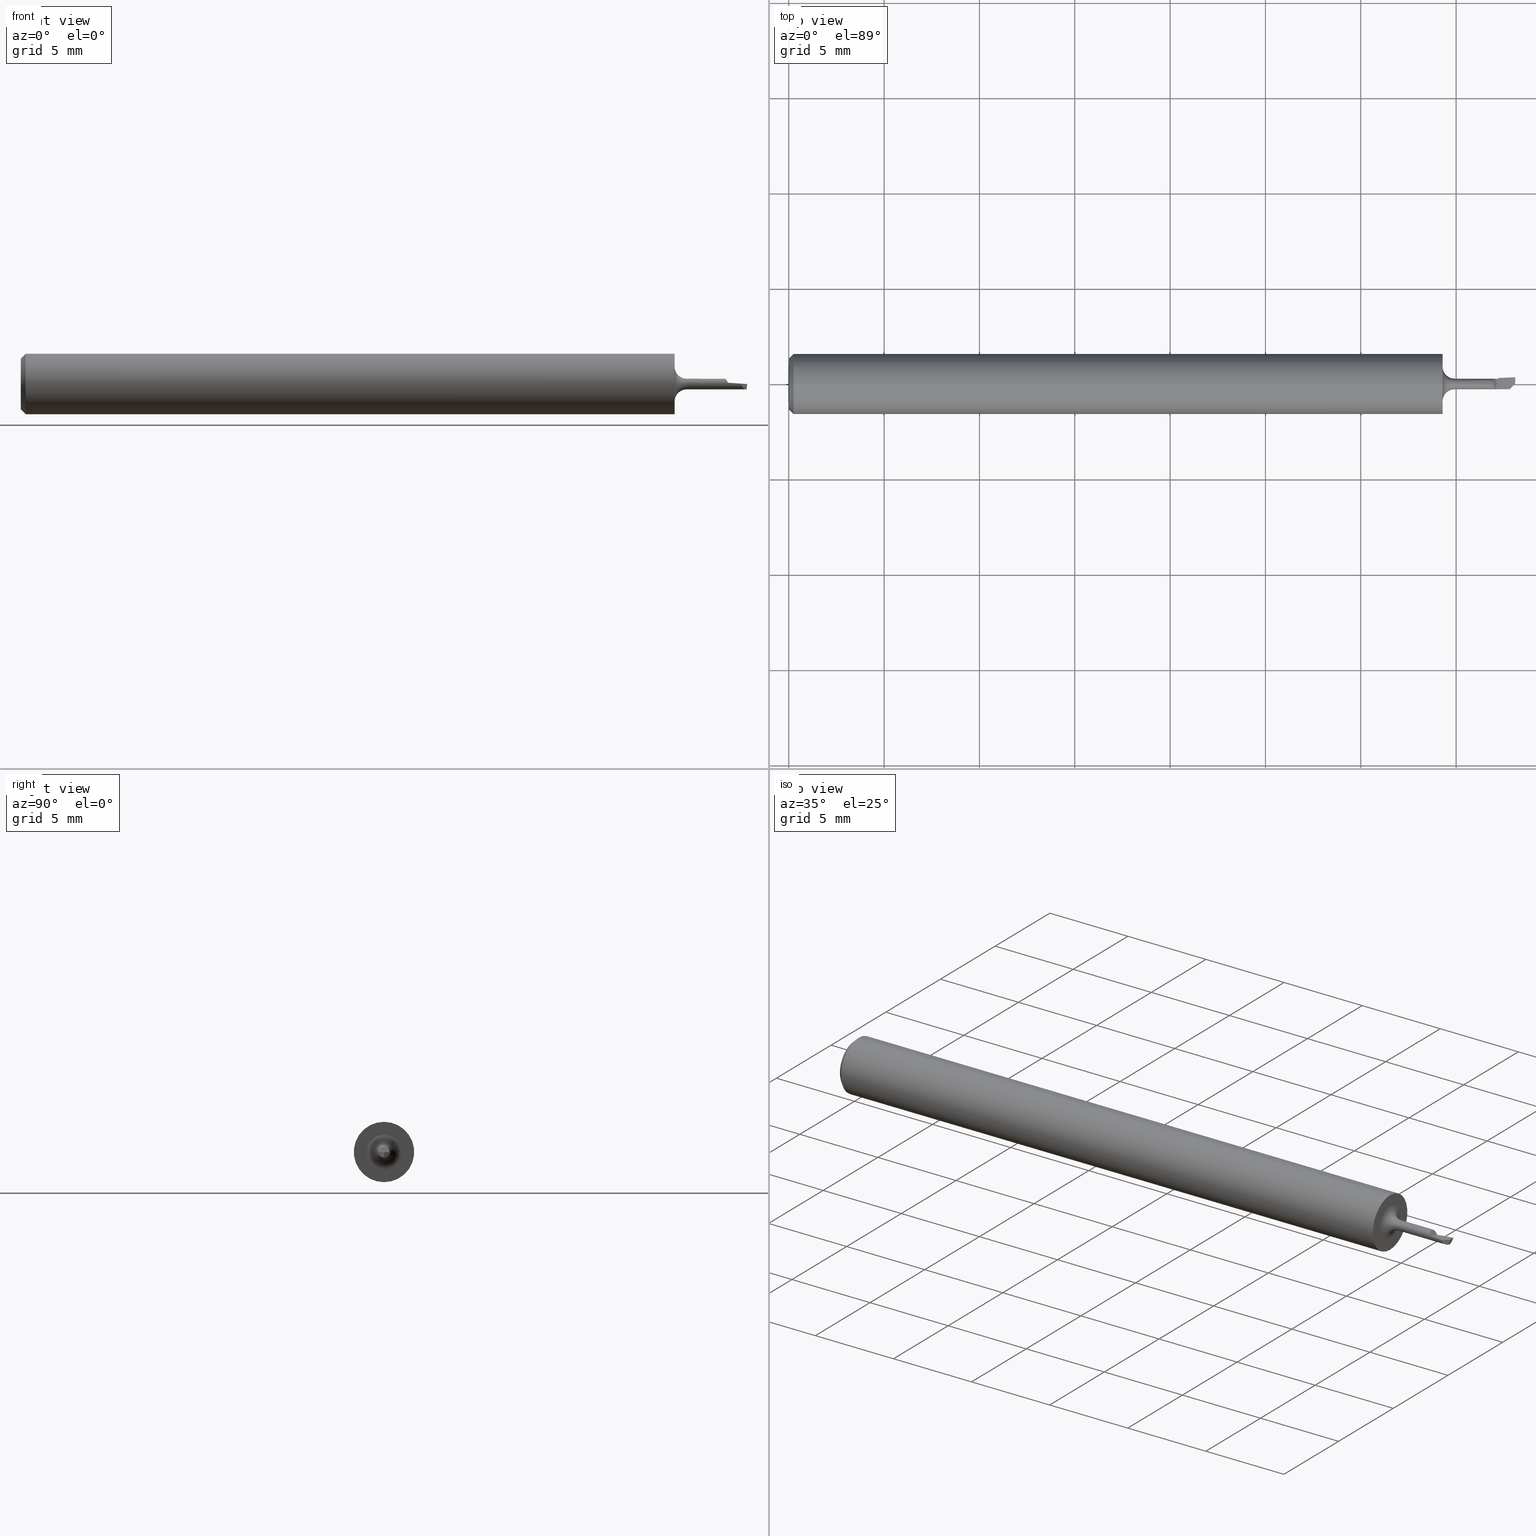
[diagram: canonical four-view strip — front | top / right | iso, engineering-drawing reading convention]
A machine part, canonical four-view strip (front | top / right | iso — engineering-drawing reading convention). The complete STEP part file that produces these views, byte-faithful:
ISO-10303-21;
HEADER;
FILE_DESCRIPTION (( 'STEP AP203' ),
    '1' );
FILE_NAME ('215922-HB27.STEP',
    '2024-08-05T22:22:32',
    ( '' ),
    ( '' ),
    'SwSTEP 2.0',
    'SolidWorks 2024',
    '' );
FILE_SCHEMA (( 'CONFIG_CONTROL_DESIGN' ));
ENDSEC;

DATA;
#1 = DIRECTION ( 'NONE',  ( -1.000000000000000000, -0.000000000000000000, -0.000000000000000000 ) ) ;
#2 = EDGE_CURVE ( 'NONE', #233, #117, #296, .T. ) ;
#3 = DIRECTION ( 'NONE',  ( 0.000000000000000000, -0.6768759696826566197, -0.7360970871197380916 ) ) ;
#4 =( BOUNDED_CURVE ( )  B_SPLINE_CURVE ( 2, ( #333, #350, #499 ),
 .UNSPECIFIED., .F., .T. ) 
 B_SPLINE_CURVE_WITH_KNOTS ( ( 3, 3 ),
 ( 0.06188463428647925091, 0.1997340516793694731 ),
 .UNSPECIFIED. ) 
 CURVE ( )  GEOMETRIC_REPRESENTATION_ITEM ( )  RATIONAL_B_SPLINE_CURVE ( ( 0.9768520538734604131, 0.9668272027460060869, 0.9641484813838072654 ) ) 
 REPRESENTATION_ITEM ( '' )  );
#5 = ORIENTED_EDGE ( 'NONE', *, *, #142, .F. ) ;
#6 = CARTESIAN_POINT ( 'NONE',  ( 1.461805761899245049, 0.01218224114355641839, -0.003035340601619568052 ) ) ;
#7 = CIRCLE ( 'NONE', #177, 0.01099999999999999936 ) ;
#8 = VECTOR ( 'NONE', #405, 39.37007874015748143 ) ;
#9 = VERTEX_POINT ( 'NONE', #354 ) ;
#10 = PLANE ( 'NONE',  #679 ) ;
#11 = ADVANCED_FACE ( 'NONE', ( #307 ), #355, .T. ) ;
#12 = CARTESIAN_POINT ( 'NONE',  ( 0.01000000000000000021, 7.635672792683748212E-18, -0.06235000000000000264 ) ) ;
#13 = VERTEX_POINT ( 'NONE', #348 ) ;
#14 = LINE ( 'NONE', #497, #8 ) ;
#15 = B_SPLINE_CURVE_WITH_KNOTS ( 'NONE', 3,
 ( #393, #701, #55, #381, #540, #164, #589, #330, #588, #432 ),
 .UNSPECIFIED., .F., .F.,
 ( 4, 3, 3, 4 ),
 ( 1.092639670730422270E-18, 3.726437477282539099E-05, 9.316145714878812845E-05, 0.0001490590473651542491 ),
 .UNSPECIFIED. ) ;
#16 = CARTESIAN_POINT ( 'NONE',  ( 0.01000000000000000021, 0.000000000000000000, 0.000000000000000000 ) ) ;
#17 = VERTEX_POINT ( 'NONE', #688 ) ;
#18 = CARTESIAN_POINT ( 'NONE',  ( 1.488026760838569995, -0.01097298327602348224, 0.0007704790908231645480 ) ) ;
#19 = MANIFOLD_SOLID_BREP ( 'Front Angle', #485 ) ;
#20 = CONICAL_SURFACE ( 'NONE', #180, 0.06235000000000000264, 0.7853981633974502774 ) ;
#21 = DATE_AND_TIME ( #123, #245 ) ;
#22 = ORIENTED_EDGE ( 'NONE', *, *, #564, .F. ) ;
#23 = DIRECTION ( 'NONE',  ( -1.000000000000000000, 0.000000000000000000, -0.000000000000000000 ) ) ;
#24 = EDGE_CURVE ( 'NONE', #466, #503, #439, .T. ) ;
#25 = LENGTH_MEASURE_WITH_UNIT ( LENGTH_MEASURE( 0.02539999999999999897 ), #394 );
#26 = EDGE_LOOP ( 'NONE', ( #22, #548, #594, #174 ) ) ;
#27 = CARTESIAN_POINT ( 'NONE',  ( 1.350000000000000311, 0.000000000000000000, 0.06234999999999997489 ) ) ;
#28 = DIRECTION ( 'NONE',  ( 0.000000000000000000, 0.000000000000000000, 1.000000000000000000 ) ) ;
#29 = ORIENTED_EDGE ( 'NONE', *, *, #280, .F. ) ;
#30 = CARTESIAN_POINT ( 'NONE',  ( 1.488026760838569995, -0.01097298327602348224, 0.0007704790908231645480 ) ) ;
#31 = CARTESIAN_POINT ( 'NONE',  ( 1.350000000000000311, 0.000000000000000000, 0.000000000000000000 ) ) ;
#32 = DIRECTION ( 'NONE',  ( 0.7071067811865461294, 8.659560562354950115E-17, 0.7071067811865489050 ) ) ;
#33 = EDGE_CURVE ( 'NONE', #446, #577, #234, .T. ) ;
#34 = AXIS2_PLACEMENT_3D ( 'NONE', #634, #362, #244 ) ;
#35 = EDGE_LOOP ( 'NONE', ( #201, #309, #29, #86, #542, #410 ) ) ;
#36 = DIRECTION ( 'NONE',  ( -0.008726535498371339530, -0.9999619230641711987, -3.658574234678484783E-16 ) ) ;
#37 =( GEOMETRIC_REPRESENTATION_CONTEXT ( 3 ) GLOBAL_UNCERTAINTY_ASSIGNED_CONTEXT ( ( #616 ) ) GLOBAL_UNIT_ASSIGNED_CONTEXT ( ( #82, #653, #229 ) ) REPRESENTATION_CONTEXT ( 'NONE', 'WORKASPACE' ) );
#38 = CC_DESIGN_APPROVAL ( #260, ( #51 ) ) ;
#39 = DIRECTION ( 'NONE',  ( -1.000000000000000000, -0.000000000000000000, -0.000000000000000000 ) ) ;
#40 = CARTESIAN_POINT ( 'NONE',  ( 1.500000000000000222, 0.01400000000000000203, 0.000000000000000000 ) ) ;
#41 = ORIENTED_EDGE ( 'NONE', *, *, #467, .F. ) ;
#42 = EDGE_CURVE ( 'NONE', #637, #90, #249, .T. ) ;
#43 = VERTEX_POINT ( 'NONE', #311 ) ;
#44 = CARTESIAN_POINT ( 'NONE',  ( 0.000000000000000000, 7.635672792683743590E-18, -0.06234999999999997489 ) ) ;
#45 = CARTESIAN_POINT ( 'NONE',  ( 1.461706432049909798, 0.01066192504299740516, -0.002706169687492898136 ) ) ;
#46 = ORIENTED_EDGE ( 'NONE', *, *, #310, .F. ) ;
#47 = FACE_OUTER_BOUND ( 'NONE', #35, .T. ) ;
#48 = CARTESIAN_POINT ( 'NONE',  ( 0.000000000000000000, 0.000000000000000000, 0.000000000000000000 ) ) ;
#49 = DIRECTION ( 'NONE',  ( 0.000000000000000000, -0.8443279255020124108, -0.5358267949790007645 ) ) ;
#50 = VERTEX_POINT ( 'NONE', #27 ) ;
#51 = SECURITY_CLASSIFICATION ( '', '', #627 ) ;
#52 = CARTESIAN_POINT ( 'NONE',  ( 1.465000000000000302, 0.01099999999999999936, 0.000000000000000000 ) ) ;
#53 = CARTESIAN_POINT ( 'NONE',  ( 1.465000000000000080, 0.008663557173212241974, -0.007059922231586013980 ) ) ;
#54 = CARTESIAN_POINT ( 'NONE',  ( 0.01000000000000000021, 0.000000000000000000, 0.000000000000000000 ) ) ;
#55 = CARTESIAN_POINT ( 'NONE',  ( 1.499462306254320865, 0.01156320831104424088, -0.004205809907828395380 ) ) ;
#56 = CARTESIAN_POINT ( 'NONE',  ( 1.461706432049909798, 0.01066192504299740516, -0.002706169687492898136 ) ) ;
#57 = CARTESIAN_POINT ( 'NONE',  ( 1.493101500071699395, -0.005898244042894709022, -0.05476742737129525196 ) ) ;
#58 = AXIS2_PLACEMENT_3D ( 'NONE', #149, #203, #568 ) ;
#59 = ORGANIZATION ( 'UNSPECIFIED', 'UNSPECIFIED', '' ) ;
#60 = CARTESIAN_POINT ( 'NONE',  ( 1.455000000000000293, -0.008936863904572768871, 0.01293529125681014934 ) ) ;
#61 = ADVANCED_FACE ( 'NONE', ( #47 ), #257, .F. ) ;
#62 = CARTESIAN_POINT ( 'NONE',  ( 1.454999999999999627, 0.006576484322378089130, 0.008802041410050412060 ) ) ;
#63 = CARTESIAN_POINT ( 'NONE',  ( 1.476666675937827078, 0.009544854644398165222, -0.006506163763672952703 ) ) ;
#64 = ORIENTED_EDGE ( 'NONE', *, *, #264, .T. ) ;
#65 =( BOUNDED_CURVE ( )  B_SPLINE_CURVE ( 3, ( #595, #403, #134, #237 ),
 .UNSPECIFIED., .F., .T. ) 
 B_SPLINE_CURVE_WITH_KNOTS ( ( 4, 4 ),
 ( 0.0006483436508097866055, 0.0006954303812397327365 ),
 .UNSPECIFIED. ) 
 CURVE ( )  GEOMETRIC_REPRESENTATION_ITEM ( )  RATIONAL_B_SPLINE_CURVE ( ( 0.9652500736883317112, 0.9652632011816517643, 0.9652774352154624982, 0.9652927757897641348 ) ) 
 REPRESENTATION_ITEM ( '' )  );
#66 = CARTESIAN_POINT ( 'NONE',  ( 1.500000000000000222, 0.01400000000000000203, 0.000000000000000000 ) ) ;
#67 = PERSON_AND_ORGANIZATION ( #358, #59 ) ;
#68 = EDGE_LOOP ( 'NONE', ( #566, #468, #544, #41, #449, #395, #226, #291, #521 ) ) ;
#69 = DIRECTION ( 'NONE',  ( -0.000000000000000000, 1.000000000000000000, 1.224646799147353207E-16 ) ) ;
#70 = AXIS2_PLACEMENT_3D ( 'NONE', #401, #343, #437 ) ;
#71 = APPLICATION_CONTEXT ( 'configuration controlled 3d designs of mechanical parts and assemblies' ) ;
#72 = APPLICATION_PROTOCOL_DEFINITION ( 'international standard', 'config_control_design', 1994, #71 ) ;
#73 = ORIENTED_EDGE ( 'NONE', *, *, #669, .F. ) ;
#74 = DIRECTION ( 'NONE',  ( 1.000000000000000000, 0.000000000000000000, 0.000000000000000000 ) ) ;
#75 = PERSON_AND_ORGANIZATION ( #358, #59 ) ;
#76 = VERTEX_POINT ( 'NONE', #558 ) ;
#77 = CARTESIAN_POINT ( 'NONE',  ( 1.498570902974785124, 0.005014482246474024144, -0.01100000000000006008 ) ) ;
#78 = DIRECTION ( 'NONE',  ( 0.000000000000000000, 0.000000000000000000, 1.000000000000000000 ) ) ;
#79 = ORIENTED_EDGE ( 'NONE', *, *, #367, .F. ) ;
#80 = CARTESIAN_POINT ( 'NONE',  ( 1.460294939883026499, -0.01067505206805316638, 0.002653914721621733128 ) ) ;
#81 = VECTOR ( 'NONE', #480, 39.37007874015748143 ) ;
#82 =( CONVERSION_BASED_UNIT ( 'INCH', #25 ) LENGTH_UNIT ( ) NAMED_UNIT ( #374 ) );
#83 = ORIENTED_EDGE ( 'NONE', *, *, #33, .F. ) ;
#84 = CARTESIAN_POINT ( 'NONE',  ( 1.450000000000000178, 0.1164407279210481760, -0.02391476189409310477 ) ) ;
#85 = PLANE ( 'NONE',  #496 ) ;
#86 = ORIENTED_EDGE ( 'NONE', *, *, #179, .T. ) ;
#87 = ORIENTED_EDGE ( 'NONE', *, *, #94, .F. ) ;
#88 = CARTESIAN_POINT ( 'NONE',  ( 1.475623186547684984, 0.003332181577295095006, -0.01100000000000006355 ) ) ;
#89 =( BOUNDED_CURVE ( )  B_SPLINE_CURVE ( 3, ( #640, #99, #308, #583 ),
 .UNSPECIFIED., .F., .F. ) 
 B_SPLINE_CURVE_WITH_KNOTS ( ( 4, 4 ),
 ( 0.02771288460919517707, 0.07095262296447157890 ),
 .UNSPECIFIED. ) 
 CURVE ( )  GEOMETRIC_REPRESENTATION_ITEM ( )  RATIONAL_B_SPLINE_CURVE ( ( 1.000000000000000000, 0.9998441998210494397, 0.9998441998210494397, 1.000000000000000000 ) ) 
 REPRESENTATION_ITEM ( '' )  );
#90 = VERTEX_POINT ( 'NONE', #292 ) ;
#91 = ORIENTED_EDGE ( 'NONE', *, *, #430, .T. ) ;
#92 = DIRECTION ( 'NONE',  ( 0.000000000000000000, 0.000000000000000000, 1.000000000000000000 ) ) ;
#93 = CARTESIAN_POINT ( 'NONE',  ( 1.465000000000000080, 0.01257150240625493770, -0.002810063717603226638 ) ) ;
#94 = EDGE_CURVE ( 'NONE', #272, #610, #436, .T. ) ;
#95 = APPROVAL_STATUS ( 'not_yet_approved' ) ;
#96 = ORIENTED_EDGE ( 'NONE', *, *, #614, .T. ) ;
#97 = CARTESIAN_POINT ( 'NONE',  ( 1.300000000000000711, 0.007463250573633140386, -0.03763524983184746153 ) ) ;
#98 = CARTESIAN_POINT ( 'NONE',  ( 1.350000000000000311, 0.1123499999999999638, 0.000000000000000000 ) ) ;
#99 = CARTESIAN_POINT ( 'NONE',  ( 1.498524796033371853, -0.0003170790644579574223, -0.01099657226253698654 ) ) ;
#100 = ORIENTED_EDGE ( 'NONE', *, *, #435, .F. ) ;
#101 = CARTESIAN_POINT ( 'NONE',  ( 1.465000000000000302, 0.01071497182936998610, -0.002487846201203671500 ) ) ;
#102 = CC_DESIGN_DATE_AND_TIME_ASSIGNMENT ( #357, #147, ( #51 ) ) ;
#103 = FACE_OUTER_BOUND ( 'NONE', #241, .T. ) ;
#104 = B_SPLINE_CURVE_WITH_KNOTS ( 'NONE', 3,
 ( #535, #598, #293, #660, #178, #189 ),
 .UNSPECIFIED., .F., .F.,
 ( 4, 2, 4 ),
 ( 0.000000000000000000, 0.5000000000000000000, 1.000000000000000000 ),
 .UNSPECIFIED. ) ;
#105 = DIRECTION ( 'NONE',  ( -1.000000000000000000, -0.000000000000000000, -0.000000000000000000 ) ) ;
#106 = ADVANCED_FACE ( 'NONE', ( #665 ), #287, .F. ) ;
#107 = PLANE ( 'NONE',  #504 ) ;
#108 = LINE ( 'NONE', #154, #150 ) ;
#109 = CARTESIAN_POINT ( 'NONE',  ( 1.500000000000000222, 0.01400000000000000203, 0.000000000000000000 ) ) ;
#110 = CARTESIAN_POINT ( 'NONE',  ( 1.500000000000000222, 0.01111324865405191424, -0.004999999999999999237 ) ) ;
#111 = APPROVAL ( #448, 'UNSPECIFIED' ) ;
#112 = DIRECTION ( 'NONE',  ( 0.000000000000000000, 0.000000000000000000, 1.000000000000000000 ) ) ;
#113 = EDGE_CURVE ( 'NONE', #90, #76, #7, .T. ) ;
#114 = CARTESIAN_POINT ( 'NONE',  ( 1.350000000000000311, 0.000000000000000000, 0.000000000000000000 ) ) ;
#115 = CIRCLE ( 'NONE', #652, 0.05234999999999996600 ) ;
#116 = CARTESIAN_POINT ( 'NONE',  ( 1.496159072355575548, 0.01386847244187099093, -0.0003531222682976271551 ) ) ;
#117 = VERTEX_POINT ( 'NONE', #316 ) ;
#118 = FACE_OUTER_BOUND ( 'NONE', #692, .T. ) ;
#119 = APPROVAL_DATE_TIME ( #21, #529 ) ;
#120 = ORIENTED_EDGE ( 'NONE', *, *, #392, .F. ) ;
#121 = ADVANCED_FACE ( 'NONE', ( #697 ), #694, .T. ) ;
#122 = DIRECTION ( 'NONE',  ( -0.7071067811865481278, -0.7071067811865469066, 0.000000000000000000 ) ) ;
#123 = CALENDAR_DATE ( 2024, 5, 8 ) ;
#124 = ORIENTED_EDGE ( 'NONE', *, *, #614, .F. ) ;
#125 = DIRECTION ( 'NONE',  ( 0.000000000000000000, -1.000000000000000000, 0.000000000000000000 ) ) ;
#126 = VECTOR ( 'NONE', #465, 39.37007874015748854 ) ;
#127 = APPROVAL_PERSON_ORGANIZATION ( #531, #260, #474 ) ;
#128 = APPROVAL_ROLE ( '' ) ;
#129 = EDGE_LOOP ( 'NONE', ( #312, #667 ) ) ;
#130 = DIRECTION ( 'NONE',  ( 0.000000000000000000, 0.000000000000000000, -1.000000000000000000 ) ) ;
#131 = DIRECTION ( 'NONE',  ( 1.000000000000000000, 0.000000000000000000, 0.000000000000000000 ) ) ;
#132 = CC_DESIGN_PERSON_AND_ORGANIZATION_ASSIGNMENT ( #285, #506, ( #670 ) ) ;
#133 = EDGE_LOOP ( 'NONE', ( #329, #623 ) ) ;
#134 = CARTESIAN_POINT ( 'NONE',  ( 1.465000000000000524, 0.01192695237568953265, -0.002731499064284245108 ) ) ;
#135 = ADVANCED_FACE ( 'NONE', ( #473 ), #427, .F. ) ;
#136 = CARTESIAN_POINT ( 'NONE',  ( 1.465000000000000080, -0.08369698408477162233, -0.06567370404552566598 ) ) ;
#137 = VERTEX_POINT ( 'NONE', #690 ) ;
#138 = CARTESIAN_POINT ( 'NONE',  ( 1.300000000000000711, 0.04669182850102627375, -0.1029606861600566720 ) ) ;
#139 = VECTOR ( 'NONE', #145, 39.37007874015748143 ) ;
#140 = ORIENTED_EDGE ( 'NONE', *, *, #441, .T. ) ;
#141 = DIRECTION ( 'NONE',  ( -1.000000000000000000, -0.000000000000000000, -0.000000000000000000 ) ) ;
#142 = EDGE_CURVE ( 'NONE', #238, #511, #317, .T. ) ;
#143 = CARTESIAN_POINT ( 'NONE',  ( 1.465000000000000080, 0.008663557173212243709, -0.007059922231586012245 ) ) ;
#144 = ORIENTED_EDGE ( 'NONE', *, *, #467, .T. ) ;
#145 = DIRECTION ( 'NONE',  ( -1.000000000000000000, -0.000000000000000000, -0.000000000000000000 ) ) ;
#146 = CARTESIAN_POINT ( 'NONE',  ( 1.476666670491731059, 0.01314126845973225856, -0.001969838062967769251 ) ) ;
#147 = DATE_TIME_ROLE ( 'classification_date' ) ;
#148 = ORIENTED_EDGE ( 'NONE', *, *, #163, .F. ) ;
#149 = CARTESIAN_POINT ( 'NONE',  ( 0.000000000000000000, 0.000000000000000000, 0.000000000000000000 ) ) ;
#150 = VECTOR ( 'NONE', #32, 39.37007874015748143 ) ;
#151 = COORDINATED_UNIVERSAL_TIME_OFFSET ( 8, 0, .BEHIND. ) ;
#152 = ORIENTED_EDGE ( 'NONE', *, *, #179, .F. ) ;
#153 = CARTESIAN_POINT ( 'NONE',  ( 1.463354608852885264, 0.01068956331083543813, -0.002597278829181503147 ) ) ;
#154 = CARTESIAN_POINT ( 'NONE',  ( 0.01000000000000000021, 7.635672792683746671E-18, 0.06235000000000000264 ) ) ;
#155 = CARTESIAN_POINT ( 'NONE',  ( 1.482708362660410284, 0.003878486105752816226, -0.01100000000000006008 ) ) ;
#156 = CC_DESIGN_DATE_AND_TIME_ASSIGNMENT ( #453, #551, ( #452 ) ) ;
#157 = CARTESIAN_POINT ( 'NONE',  ( 1.375000000000000222, 0.000000000000000000, 0.000000000000000000 ) ) ;
#158 = AXIS2_PLACEMENT_3D ( 'NONE', #404, #141, #522 ) ;
#159 = CIRCLE ( 'NONE', #572, 0.01100000000000003059 ) ;
#160 = EDGE_CURVE ( 'NONE', #503, #17, #210, .T. ) ;
#161 = LINE ( 'NONE', #704, #476 ) ;
#162 = CARTESIAN_POINT ( 'NONE',  ( 1.500000000000000222, 0.01111324865405191424, -0.005000000000000000104 ) ) ;
#163 = EDGE_CURVE ( 'NONE', #344, #13, #519, .T. ) ;
#164 = CARTESIAN_POINT ( 'NONE',  ( 1.499677158752738437, 0.01254156103423597311, -0.002525576772598270812 ) ) ;
#165 = LINE ( 'NONE', #484, #303 ) ;
#166 = DIRECTION ( 'NONE',  ( 1.000000000000000000, 0.000000000000000000, 0.000000000000000000 ) ) ;
#167 = ORIENTED_EDGE ( 'NONE', *, *, #483, .F. ) ;
#168 = CIRCLE ( 'NONE', #318, 0.02499999999999993894 ) ;
#169 = CARTESIAN_POINT ( 'NONE',  ( 1.492317180334472138, 0.01372623269205192759, -0.0006921383881364157140 ) ) ;
#170 = EDGE_CURVE ( 'NONE', #517, #659, #691, .T. ) ;
#171 = VERTEX_POINT ( 'NONE', #376 ) ;
#172 = CARTESIAN_POINT ( 'NONE',  ( 1.484563601990015691, 0.01341977082326128654, -0.001349814187536732850 ) ) ;
#173 = PLANE ( 'NONE',  #70 ) ;
#174 = ORIENTED_EDGE ( 'NONE', *, *, #550, .F. ) ;
#175 = PLANE ( 'NONE',  #398 ) ;
#176 = ORIENTED_EDGE ( 'NONE', *, *, #94, .T. ) ;
#177 = AXIS2_PLACEMENT_3D ( 'NONE', #416, #105, #534 ) ;
#178 = CARTESIAN_POINT ( 'NONE',  ( 1.455330216509927110, -0.003026205129305178237, 0.01069228297032353940 ) ) ;
#179 = EDGE_CURVE ( 'NONE', #17, #117, #89, .T. ) ;
#180 = AXIS2_PLACEMENT_3D ( 'NONE', #16, #131, #606 ) ;
#181 = APPLICATION_CONTEXT ( 'configuration controlled 3d designs of mechanical parts and assemblies' ) ;
#182 = DIRECTION ( 'NONE',  ( 0.000000000000000000, 0.000000000000000000, -1.000000000000000000 ) ) ;
#183 = ORIENTED_EDGE ( 'NONE', *, *, #160, .F. ) ;
#184 = CARTESIAN_POINT ( 'NONE',  ( 1.464999999999999858, 0.000000000000000000, -0.01100000000000006355 ) ) ;
#185 = EDGE_CURVE ( 'NONE', #9, #637, #621, .T. ) ;
#186 = MECHANICAL_CONTEXT ( 'NONE', #71, 'mechanical' ) ;
#187 = ORIENTED_EDGE ( 'NONE', *, *, #215, .F. ) ;
#188 = ORIENTED_EDGE ( 'NONE', *, *, #24, .T. ) ;
#189 = CARTESIAN_POINT ( 'NONE',  ( 1.455000000000000293, -0.001464532702695844381, 0.01090207062730447901 ) ) ;
#190 = B_SPLINE_SURFACE_WITH_KNOTS ( 'NONE', 1, 3, ( 
 ( #60, #326, #62, #543 ),
 ( #587, #271, #655, #6 ) ),
 .UNSPECIFIED., .F., .F., .F.,
 ( 2, 2 ),
 ( 4, 4 ),
 ( 0.000000000000000000, 1.000000000000000000 ),
 ( 0.001243541713741711050, 0.001853686994948886956 ),
 .UNSPECIFIED. ) ;
#191 = ORIENTED_EDGE ( 'NONE', *, *, #170, .T. ) ;
#192 = CARTESIAN_POINT ( 'NONE',  ( 1.499861266642130042, 0.0008615225275355855097, -0.0001960725718938855628 ) ) ;
#193 = DESIGN_CONTEXT ( 'detailed design', #181, 'design' ) ;
#194 = DIRECTION ( 'NONE',  ( -0.000000000000000000, 0.000000000000000000, 1.000000000000000000 ) ) ;
#195 = AXIS2_PLACEMENT_3D ( 'NONE', #612, #560, #419 ) ;
#196 = PERSON_AND_ORGANIZATION_ROLE ( 'classification_officer' ) ;
#197 = ORIENTED_EDGE ( 'NONE', *, *, #320, .F. ) ;
#198 = EDGE_CURVE ( 'NONE', #344, #517, #108, .T. ) ;
#199 = CARTESIAN_POINT ( 'NONE',  ( 1.400000000000000355, -0.08349286298948445373, 0.07622316952959964920 ) ) ;
#200 = CARTESIAN_POINT ( 'NONE',  ( 1.465000000000000080, 0.003208916633383561770, -0.01052154237932796145 ) ) ;
#201 = ORIENTED_EDGE ( 'NONE', *, *, #320, .T. ) ;
#202 = EDGE_LOOP ( 'NONE', ( #470, #607, #176, #526 ) ) ;
#203 = DIRECTION ( 'NONE',  ( -1.000000000000000000, -0.000000000000000000, -0.000000000000000000 ) ) ;
#204 = ORIENTED_EDGE ( 'NONE', *, *, #294, .F. ) ;
#205 = CARTESIAN_POINT ( 'NONE',  ( 1.400000000000000355, 0.09829325564656585246, -0.05585217666051867785 ) ) ;
#206 = EDGE_CURVE ( 'NONE', #507, #76, #530, .T. ) ;
#207 = AXIS2_PLACEMENT_3D ( 'NONE', #239, #475, #615 ) ;
#208 = CIRCLE ( 'NONE', #539, 0.01100000000000006355 ) ;
#209 = DIRECTION ( 'NONE',  ( -1.000000000000000000, -0.000000000000000000, -0.000000000000000000 ) ) ;
#210 =( BOUNDED_CURVE ( )  B_SPLINE_CURVE ( 3, ( #314, #424, #686, #639 ),
 .UNSPECIFIED., .F., .T. ) 
 B_SPLINE_CURVE_WITH_KNOTS ( ( 4, 4 ),
 ( 6.213084353216149935, 7.810741895619218056 ),
 .UNSPECIFIED. ) 
 CURVE ( )  GEOMETRIC_REPRESENTATION_ITEM ( )  RATIONAL_B_SPLINE_CURVE ( ( 1.000000000000000000, 0.7983642796029735145, 0.7983642796029735145, 1.000000000000000000 ) ) 
 REPRESENTATION_ITEM ( '' )  );
#211 = CARTESIAN_POINT ( 'NONE',  ( 0.01000000000000000021, 0.000000000000000000, 0.000000000000000000 ) ) ;
#212 = CARTESIAN_POINT ( 'NONE',  ( 1.465000000000000080, 0.008663557173212245444, -0.007059922231586011378 ) ) ;
#213 = B_SPLINE_CURVE_WITH_KNOTS ( 'NONE', 3,
 ( #644, #383, #263, #217 ),
 .UNSPECIFIED., .F., .F.,
 ( 4, 4 ),
 ( 0.000000000000000000, 1.000000000000000000 ),
 .UNSPECIFIED. ) ;
#214 = CIRCLE ( 'NONE', #222, 0.03599999999999999728 ) ;
#215 = EDGE_CURVE ( 'NONE', #76, #238, #258, .T. ) ;
#216 = AXIS2_PLACEMENT_3D ( 'NONE', #567, #297, #92 ) ;
#217 = CARTESIAN_POINT ( 'NONE',  ( 1.455000000000000293, -0.001464532702695844381, 0.01090207062730447901 ) ) ;
#218 = CARTESIAN_POINT ( 'NONE',  ( 1.472826875716982453, 0.01290771623569022739, -0.002278798500135563454 ) ) ;
#219 = CARTESIAN_POINT ( 'NONE',  ( 1.500000000000000222, -0.06623675134594721181, -0.08234999999999997877 ) ) ;
#220 = CARTESIAN_POINT ( 'NONE',  ( 1.375000000000000222, 0.000000000000000000, 0.000000000000000000 ) ) ;
#221 = CARTESIAN_POINT ( 'NONE',  ( 1.488333059364066679, -0.07264622679252182025, -0.07749447844898986471 ) ) ;
#222 = AXIS2_PLACEMENT_3D ( 'NONE', #321, #389, #112 ) ;
#223 = VECTOR ( 'NONE', #384, 39.37007874015748143 ) ;
#224 = CARTESIAN_POINT ( 'NONE',  ( 1.461235828744176457, 0.003497210998019520921, -0.001138772604842354071 ) ) ;
#225 = FACE_OUTER_BOUND ( 'NONE', #592, .T. ) ;
#226 = ORIENTED_EDGE ( 'NONE', *, *, #42, .T. ) ;
#227 = B_SPLINE_CURVE_WITH_KNOTS ( 'NONE', 3,
 ( #680, #620, #254, #88, #638, #155, #360, #408, #617, #563 ),
 .UNSPECIFIED., .F., .F.,
 ( 4, 3, 3, 4 ),
 ( 0.000000000000000000, 0.0002707472737156460703, 0.0005414922636980130499, 0.0008551831457257216655 ),
 .UNSPECIFIED. ) ;
#228 = CARTESIAN_POINT ( 'NONE',  ( 1.465000000000000302, 0.01099999999999999936, 0.000000000000000000 ) ) ;
#229 =( NAMED_UNIT ( * ) SI_UNIT ( $, .STERADIAN. ) SOLID_ANGLE_UNIT ( ) );
#230 = ORIENTED_EDGE ( 'NONE', *, *, #385, .F. ) ;
#231 = EDGE_CURVE ( 'NONE', #511, #272, #248, .T. ) ;
#232 = FACE_OUTER_BOUND ( 'NONE', #129, .T. ) ;
#233 = VERTEX_POINT ( 'NONE', #681 ) ;
#234 = CIRCLE ( 'NONE', #158, 0.03599999999999999728 ) ;
#235 = AXIS2_PLACEMENT_3D ( 'NONE', #98, #423, #313 ) ;
#236 = ORIENTED_EDGE ( 'NONE', *, *, #33, .T. ) ;
#237 = CARTESIAN_POINT ( 'NONE',  ( 1.464999999999999636, 0.01253327271881428916, -0.002851638190367012608 ) ) ;
#238 = VERTEX_POINT ( 'NONE', #200 ) ;
#239 = CARTESIAN_POINT ( 'NONE',  ( 1.500000000000000222, 0.01400000000000000203, 0.000000000000000000 ) ) ;
#240 = DIRECTION ( 'NONE',  ( -0.7071067811865469066, 0.7071067811865481278, 0.000000000000000000 ) ) ;
#241 = EDGE_LOOP ( 'NONE', ( #513, #306 ) ) ;
#242 = ORIENTED_EDGE ( 'NONE', *, *, #605, .F. ) ;
#243 = FACE_OUTER_BOUND ( 'NONE', #417, .T. ) ;
#244 = DIRECTION ( 'NONE',  ( 0.000000000000000000, 0.000000000000000000, 1.000000000000000000 ) ) ;
#245 = LOCAL_TIME ( 15, 22, 32.00000000000000000, #339 ) ;
#246 = CARTESIAN_POINT ( 'NONE',  ( 1.350000000000000755, 0.01969168451664655983, -0.03521029272255252890 ) ) ;
#247 = CC_DESIGN_PERSON_AND_ORGANIZATION_ASSIGNMENT ( #390, #274, ( #452 ) ) ;
#248 = LINE ( 'NONE', #262, #81 ) ;
#249 =( BOUNDED_CURVE ( )  B_SPLINE_CURVE ( 2, ( #418, #153, #101 ),
 .UNSPECIFIED., .F., .T. ) 
 B_SPLINE_CURVE_WITH_KNOTS ( ( 3, 3 ),
 ( 0.8071746944975189964, 0.8233224969995603937 ),
 .UNSPECIFIED. ) 
 CURVE ( )  GEOMETRIC_REPRESENTATION_ITEM ( )  RATIONAL_B_SPLINE_CURVE ( ( 0.9644354382105100321, 0.9647923542026141108, 0.9652500736883086185 ) ) 
 REPRESENTATION_ITEM ( '' )  );
#250 = DATE_AND_TIME ( #457, #351 ) ;
#251 = ORIENTED_EDGE ( 'NONE', *, *, #294, .T. ) ;
#252 = CARTESIAN_POINT ( 'NONE',  ( 1.500000000000000000, -0.03809952085550571271, -0.004531958694790460401 ) ) ;
#253 = ADVANCED_FACE ( 'NONE', ( #412 ), #290, .T. ) ;
#254 = CARTESIAN_POINT ( 'NONE',  ( 1.472081037707132278, 0.003053256017062022220, -0.01100000000000006355 ) ) ;
#255 = CARTESIAN_POINT ( 'NONE',  ( 1.465000000000000080, 0.008663557173212241974, -0.007059922231586013980 ) ) ;
#256 = APPROVAL_DATE_TIME ( #250, #111 ) ;
#257 = PLANE ( 'NONE',  #207 ) ;
#258 = LINE ( 'NONE', #53, #126 ) ;
#259 = PRODUCT_DEFINITION_FORMATION_WITH_SPECIFIED_SOURCE ( 'ANY', '', #670, .NOT_KNOWN. ) ;
#260 = APPROVAL ( #95, 'UNSPECIFIED' ) ;
#261 = DIRECTION ( 'NONE',  ( 0.000000000000000000, 0.000000000000000000, 1.000000000000000000 ) ) ;
#262 = CARTESIAN_POINT ( 'NONE',  ( 0.000000000000000000, 1.347111479062092286E-18, -0.01100000000000003059 ) ) ;
#263 = CARTESIAN_POINT ( 'NONE',  ( 1.455000000000000293, 0.001164179056595491092, 0.01021364557054820280 ) ) ;
#264 = EDGE_CURVE ( 'NONE', #9, #443, #213, .T. ) ;
#265 = CYLINDRICAL_SURFACE ( 'NONE', #464, 0.01100000000000003059 ) ;
#266 = CARTESIAN_POINT ( 'NONE',  ( 1.461706432049909798, 0.01066192504299740516, -0.002706169687492898136 ) ) ;
#267 = AXIS2_PLACEMENT_3D ( 'NONE', #157, #477, #420 ) ;
#268 = B_SPLINE_CURVE_WITH_KNOTS ( 'NONE', 3,
 ( #77, #553, #341, #396 ),
 .UNSPECIFIED., .F., .F.,
 ( 4, 4 ),
 ( 2.964182667478545502E-06, 0.0002196469161309210611 ),
 .UNSPECIFIED. ) ;
#269 = CARTESIAN_POINT ( 'NONE',  ( 1.488333310136445986, 0.01037397346448080786, -0.005814645304916996396 ) ) ;
#270 = CARTESIAN_POINT ( 'NONE',  ( 0.000000000000000000, 0.000000000000000000, 0.000000000000000000 ) ) ;
#271 = CARTESIAN_POINT ( 'NONE',  ( 1.460746203409139854, -0.003856516277116632963, 0.0006911710444063383883 ) ) ;
#272 = VERTEX_POINT ( 'NONE', #273 ) ;
#273 = CARTESIAN_POINT ( 'NONE',  ( 1.375000000000000222, 1.347111479062095945E-18, -0.01100000000000006355 ) ) ;
#274 = PERSON_AND_ORGANIZATION_ROLE ( 'creator' ) ;
#275 = ORIENTED_EDGE ( 'NONE', *, *, #441, .F. ) ;
#276 = AXIS2_PLACEMENT_3D ( 'NONE', #549, #125, #130 ) ;
#277 = DIRECTION ( 'NONE',  ( 0.000000000000000000, -1.000000000000000000, -3.659818327246363748E-16 ) ) ;
#278 = EDGE_LOOP ( 'NONE', ( #353, #454, #402, #677 ) ) ;
#279 = CARTESIAN_POINT ( 'NONE',  ( 1.375000000000000222, 4.408728476930471799E-18, -0.03600000000000000422 ) ) ;
#280 = EDGE_CURVE ( 'NONE', #17, #466, #489, .T. ) ;
#281 = APPROVAL_ROLE ( '' ) ;
#282 = VERTEX_POINT ( 'NONE', #440 ) ;
#283 = B_SPLINE_CURVE_WITH_KNOTS ( 'NONE', 3,
 ( #66, #116, #169, #434, #172, #492, #322, #218, #490, #647 ),
 .UNSPECIFIED., .F., .F.,
 ( 4, 3, 3, 4 ),
 ( 6.969188660270215497E-18, 0.0002940838282252443512, 0.0005934037794183509833, 0.0008927433884303817048 ),
 .UNSPECIFIED. ) ;
#284 = CARTESIAN_POINT ( 'NONE',  ( 1.465000000000000080, 0.002454988061523815518, -0.01100000000000006355 ) ) ;
#285 = PERSON_AND_ORGANIZATION ( #358, #59 ) ;
#286 = ORIENTED_EDGE ( 'NONE', *, *, #42, .F. ) ;
#287 = TOROIDAL_SURFACE ( 'NONE', #267, 0.03600000000000000422, 0.02499999999999993894 ) ;
#288 = CARTESIAN_POINT ( 'NONE',  ( 1.455000000000000293, -0.001464532702695844381, 0.01090207062730447901 ) ) ;
#289 = CONICAL_SURFACE ( 'NONE', #702, 0.06235000000000000264, 0.7853981633974502774 ) ;
#290 = B_SPLINE_SURFACE_WITH_KNOTS ( 'NONE', 1, 3, ( 
 ( #40, #622, #146, #93 ),
 ( #110, #269, #431, #212 ) ),
 .UNSPECIFIED., .F., .F., .F.,
 ( 2, 2 ),
 ( 4, 4 ),
 ( 0.000000000000000000, 1.000000000000000000 ),
 ( 0.000000000000000000, 1.000000000000000000 ),
 .UNSPECIFIED. ) ;
#291 = ORIENTED_EDGE ( 'NONE', *, *, #113, .T. ) ;
#292 = CARTESIAN_POINT ( 'NONE',  ( 1.465000000000000302, 0.01071497182936998610, -0.002487846201203671500 ) ) ;
#293 = CARTESIAN_POINT ( 'NONE',  ( 1.457701150165187087, -0.008375265832775142041, 0.007459447522713102095 ) ) ;
#294 = EDGE_CURVE ( 'NONE', #13, #659, #161, .T. ) ;
#295 = ORIENTED_EDGE ( 'NONE', *, *, #669, .T. ) ;
#296 = LINE ( 'NONE', #364, #676 ) ;
#297 = DIRECTION ( 'NONE',  ( -1.000000000000000000, -0.000000000000000000, -0.000000000000000000 ) ) ;
#298 = CARTESIAN_POINT ( 'NONE',  ( 1.455000000000000293, 0.006443039955695374632, 0.008915561459006023093 ) ) ;
#299 = ORIENTED_EDGE ( 'NONE', *, *, #377, .F. ) ;
#300 = CARTESIAN_POINT ( 'NONE',  ( 1.300000000000000711, -0.02274429013502431499, 0.1107417130514637832 ) ) ;
#301 = FACE_OUTER_BOUND ( 'NONE', #26, .T. ) ;
#302 = CARTESIAN_POINT ( 'NONE',  ( 1.458279207898991237, 0.01084442747929151817, 0.002861260167644818619 ) ) ;
#303 = VECTOR ( 'NONE', #3, 39.37007874015748143 ) ;
#304 = CIRCLE ( 'NONE', #421, 0.06234999999999997489 ) ;
#305 = DATE_AND_TIME ( #581, #590 ) ;
#306 = ORIENTED_EDGE ( 'NONE', *, *, #564, .T. ) ;
#307 = FACE_OUTER_BOUND ( 'NONE', #570, .T. ) ;
#308 = CARTESIAN_POINT ( 'NONE',  ( 1.498525758535956376, -0.0001585580597595390281, -0.01100000000000003232 ) ) ;
#309 = ORIENTED_EDGE ( 'NONE', *, *, #635, .T. ) ;
#310 = EDGE_CURVE ( 'NONE', #552, #171, #283, .T. ) ;
#311 = CARTESIAN_POINT ( 'NONE',  ( 1.460294939883026499, -0.01067505206805316638, 0.002653914721621733128 ) ) ;
#312 = ORIENTED_EDGE ( 'NONE', *, *, #215, .T. ) ;
#313 = DIRECTION ( 'NONE',  ( 0.000000000000000000, 0.000000000000000000, -1.000000000000000000 ) ) ;
#314 = CARTESIAN_POINT ( 'NONE',  ( 1.488026760838569995, -0.01097298327602348224, 0.0007704790908231645480 ) ) ;
#315 = CARTESIAN_POINT ( 'NONE',  ( 0.01000000000000000021, 0.000000000000000000, 0.06235000000000000264 ) ) ;
#316 = CARTESIAN_POINT ( 'NONE',  ( 1.498527142251180999, 0.000000000000000000, -0.01100000000000006355 ) ) ;
#317 = CIRCLE ( 'NONE', #661, 0.01099999999999999936 ) ;
#318 = AXIS2_PLACEMENT_3D ( 'NONE', #279, #69, #451 ) ;
#319 = CARTESIAN_POINT ( 'NONE',  ( 1.499861266642130042, 0.0008615225275355855097, -0.0001960725718938855628 ) ) ;
#320 = EDGE_CURVE ( 'NONE', #282, #552, #15, .T. ) ;
#321 = CARTESIAN_POINT ( 'NONE',  ( 1.350000000000000311, 0.000000000000000000, 0.000000000000000000 ) ) ;
#322 = CARTESIAN_POINT ( 'NONE',  ( 1.476739476189149247, 0.01308146290382523544, -0.001973392364321845290 ) ) ;
#323 = CARTESIAN_POINT ( 'NONE',  ( 0.000000000000000000, 7.023349393110068342E-18, 0.05234999999999996600 ) ) ;
#324 = DIRECTION ( 'NONE',  ( 0.000000000000000000, 1.000000000000000000, 3.659818327246363748E-16 ) ) ;
#325 = VECTOR ( 'NONE', #324, 39.37007874015748143 ) ;
#326 = CARTESIAN_POINT ( 'NONE',  ( 1.455000000000000515, -0.001226087555520766160, 0.01075787451538362700 ) ) ;
#327 = DIRECTION ( 'NONE',  ( 0.000000000000000000, 0.000000000000000000, -1.000000000000000000 ) ) ;
#328 = EDGE_CURVE ( 'NONE', #577, #446, #214, .T. ) ;
#329 = ORIENTED_EDGE ( 'NONE', *, *, #483, .T. ) ;
#330 = CARTESIAN_POINT ( 'NONE',  ( 1.499838490774166200, 0.01327221873644042829, -0.001263612182882049894 ) ) ;
#331 = COORDINATED_UNIVERSAL_TIME_OFFSET ( 8, 0, .BEHIND. ) ;
#332 = ORIENTED_EDGE ( 'NONE', *, *, #599, .F. ) ;
#333 = CARTESIAN_POINT ( 'NONE',  ( 1.488026760838569995, -0.01097298327602348224, 0.0007704790908231645480 ) ) ;
#334 = EDGE_CURVE ( 'NONE', #50, #137, #379, .T. ) ;
#335 = ORIENTED_EDGE ( 'NONE', *, *, #206, .F. ) ;
#336 = APPROVAL_PERSON_ORGANIZATION ( #67, #111, #281 ) ;
#337 = DIRECTION ( 'NONE',  ( -1.000000000000000000, -0.000000000000000000, -0.000000000000000000 ) ) ;
#338 = EDGE_CURVE ( 'NONE', #171, #507, #165, .T. ) ;
#339 = COORDINATED_UNIVERSAL_TIME_OFFSET ( 8, 0, .BEHIND. ) ;
#340 = ORIENTED_EDGE ( 'NONE', *, *, #385, .T. ) ;
#341 = CARTESIAN_POINT ( 'NONE',  ( 1.499092506985441497, 0.009062866546294208805, -0.007039764472872018022 ) ) ;
#342 = CC_DESIGN_PERSON_AND_ORGANIZATION_ASSIGNMENT ( #409, #196, ( #51 ) ) ;
#343 = DIRECTION ( 'NONE',  ( 1.000000000000000000, 0.000000000000000000, 0.000000000000000000 ) ) ;
#344 = VERTEX_POINT ( 'NONE', #323 ) ;
#345 = FACE_OUTER_BOUND ( 'NONE', #278, .T. ) ;
#346 = CARTESIAN_POINT ( 'NONE',  ( 1.465000000000000080, 0.000000000000000000, 0.000000000000000000 ) ) ;
#347 = EDGE_LOOP ( 'NONE', ( #491, #459, #561, #242 ) ) ;
#348 = CARTESIAN_POINT ( 'NONE',  ( 0.000000000000000000, 0.000000000000000000, -0.05234999999999996600 ) ) ;
#349 = EDGE_LOOP ( 'NONE', ( #597, #671, #188 ) ) ;
#350 = CARTESIAN_POINT ( 'NONE',  ( 1.474343734820335206, -0.01090594958223201245, 0.001725157302944364856 ) ) ;
#351 = LOCAL_TIME ( 15, 22, 32.00000000000000000, #662 ) ;
#352 = PERSON_AND_ORGANIZATION ( #358, #59 ) ;
#353 = ORIENTED_EDGE ( 'NONE', *, *, #510, .T. ) ;
#354 = CARTESIAN_POINT ( 'NONE',  ( 1.455000000000000293, 0.006443039955695374632, 0.008915561459006023093 ) ) ;
#355 =( BOUNDED_SURFACE ( )  B_SPLINE_SURFACE ( 3, 2, ( 
 ( #578, #678, #199, #471, #300 ),
 ( #252, #414, #624, #411, #518 ),
 ( #619, #672, #571, #246, #97 ),
 ( #512, #84, #205, #369, #138 ) ),
 .UNSPECIFIED., .F., .F., .T. ) 
 B_SPLINE_SURFACE_WITH_KNOTS ( ( 4, 4 ),
 ( 3, 2, 3 ),
 ( 0.000000000000000000, 1.000000000000000000 ),
 ( 0.000000000000000000, 0.5000000000000000000, 1.000000000000000000 ),
 .UNSPECIFIED. ) 
 GEOMETRIC_REPRESENTATION_ITEM ( )  RATIONAL_B_SPLINE_SURFACE ( (
 ( 1.000000000000000000, 0.9510565162951535312, 1.000000000000000000, 0.9510565162951535312, 1.000000000000000000),
 ( 0.9829519941216796619, 0.9348428992147388428, 0.9829519941216796619, 0.9348428992147388428, 0.9829519941216796619),
 ( 0.9829519941216796619, 0.9348428992147388428, 0.9829519941216796619, 0.9348428992147388428, 0.9829519941216796619),
 ( 1.000000000000000000, 0.9510565162951535312, 1.000000000000000000, 0.9510565162951535312, 1.000000000000000000) ) ) 
 REPRESENTATION_ITEM ( '' )  SURFACE ( )  );
#356 = ORIENTED_EDGE ( 'NONE', *, *, #2, .T. ) ;
#357 = DATE_AND_TIME ( #618, #438 ) ;
#358 = PERSON ( 'UNSPECIFIED', 'UNSPECIFIED', 'UNSPECIFIED', ('UNSPECIFIED'), ('UNSPECIFIED'), ('UNSPECIFIED') ) ;
#359 = ORIENTED_EDGE ( 'NONE', *, *, #635, .F. ) ;
#360 = CARTESIAN_POINT ( 'NONE',  ( 1.486251949238380110, 0.004138248234195810067, -0.01100000000000006008 ) ) ;
#361 = EDGE_CURVE ( 'NONE', #610, #272, #208, .T. ) ;
#362 = DIRECTION ( 'NONE',  ( -1.000000000000000000, -0.000000000000000000, -0.000000000000000000 ) ) ;
#363 = ORIENTED_EDGE ( 'NONE', *, *, #198, .T. ) ;
#364 = CARTESIAN_POINT ( 'NONE',  ( 1.498519639170685203, -0.0008597678658355731567, -0.01100000000000006355 ) ) ;
#365 = DIRECTION ( 'NONE',  ( -1.000000000000000000, -0.000000000000000000, -0.000000000000000000 ) ) ;
#366 = AXIS2_PLACEMENT_3D ( 'NONE', #666, #78, #601 ) ;
#367 = EDGE_CURVE ( 'NONE', #511, #117, #700, .T. ) ;
#368 = ORIENTED_EDGE ( 'NONE', *, *, #185, .F. ) ;
#369 = CARTESIAN_POINT ( 'NONE',  ( 1.350000000000000311, 0.08014578337208348724, -0.08778959142694428563 ) ) ;
#370 = PRODUCT_DEFINITION_SHAPE ( 'NONE', 'NONE',  #452 ) ;
#371 = FACE_BOUND ( 'NONE', #562, .T. ) ;
#372 = CARTESIAN_POINT ( 'NONE',  ( 1.375000000000000222, 0.000000000000000000, 0.000000000000000000 ) ) ;
#373 = ADVANCED_FACE ( 'NONE', ( #118 ), #190, .T. ) ;
#374 = DIMENSIONAL_EXPONENTS ( 1.000000000000000000, 0.000000000000000000, 0.000000000000000000, 0.000000000000000000, 0.000000000000000000, 0.000000000000000000, 0.000000000000000000 ) ;
#375 = LINE ( 'NONE', #44, #585 ) ;
#376 = CARTESIAN_POINT ( 'NONE',  ( 1.464999999999999636, 0.01253327271881428916, -0.002851638190367012608 ) ) ;
#377 = EDGE_CURVE ( 'NONE', #637, #43, #664, .T. ) ;
#378 = DIRECTION ( 'NONE',  ( 0.000000000000000000, 0.000000000000000000, 1.000000000000000000 ) ) ;
#379 = CIRCLE ( 'NONE', #600, 0.06234999999999997489 ) ;
#380 = CARTESIAN_POINT ( 'NONE',  ( 1.499899956387557465, 0.005241228176839296364, -0.0001922560106677297174 ) ) ;
#381 = CARTESIAN_POINT ( 'NONE',  ( 1.499516004228948818, 0.01180803356286633243, -0.003785891855073177624 ) ) ;
#382 = CARTESIAN_POINT ( 'NONE',  ( 1.488333310136445542, 0.01037397346448077663, -0.005814645304917033693 ) ) ;
#383 = CARTESIAN_POINT ( 'NONE',  ( 1.454999999999999849, 0.003800914648632686479, 0.009551256574611562480 ) ) ;
#384 = DIRECTION ( 'NONE',  ( 1.000000000000000000, -0.000000000000000000, -0.000000000000000000 ) ) ;
#385 = EDGE_CURVE ( 'NONE', #43, #443, #104, .T. ) ;
#386 = AXIS2_PLACEMENT_3D ( 'NONE', #211, #365, #425 ) ;
#387 = CARTESIAN_POINT ( 'NONE',  ( 1.375000000000000222, 0.000000000000000000, 0.01100000000000006355 ) ) ;
#388 = EDGE_LOOP ( 'NONE', ( #100, #332, #73, #187, #335, #613 ) ) ;
#389 = DIRECTION ( 'NONE',  ( -1.000000000000000000, -0.000000000000000000, -0.000000000000000000 ) ) ;
#390 = PERSON_AND_ORGANIZATION ( #358, #59 ) ;
#391 = ORIENTED_EDGE ( 'NONE', *, *, #377, .T. ) ;
#392 = EDGE_CURVE ( 'NONE', #577, #272, #168, .T. ) ;
#393 = CARTESIAN_POINT ( 'NONE',  ( 1.499354989160626372, 0.01107228538502128684, -0.005044913377335074472 ) ) ;
#394 =( LENGTH_UNIT ( ) NAMED_UNIT ( * ) SI_UNIT ( $, .METRE. ) );
#395 = ORIENTED_EDGE ( 'NONE', *, *, #185, .T. ) ;
#396 = CARTESIAN_POINT ( 'NONE',  ( 1.499354989160626372, 0.01107228538502128684, -0.005044913377335074472 ) ) ;
#397 = APPLICATION_PROTOCOL_DEFINITION ( 'international standard', 'config_control_design', 1994, #181 ) ;
#398 = AXIS2_PLACEMENT_3D ( 'NONE', #444, #604, #277 ) ;
#399 = FACE_OUTER_BOUND ( 'NONE', #650, .T. ) ;
#400 = DIRECTION ( 'NONE',  ( -1.000000000000000000, -0.000000000000000000, -0.000000000000000000 ) ) ;
#401 = CARTESIAN_POINT ( 'NONE',  ( 0.000000000000000000, 0.000000000000000000, 0.000000000000000000 ) ) ;
#402 = ORIENTED_EDGE ( 'NONE', *, *, #206, .T. ) ;
#403 = CARTESIAN_POINT ( 'NONE',  ( 1.465000000000000524, 0.01132085138113425940, -0.002610234945467910465 ) ) ;
#404 = CARTESIAN_POINT ( 'NONE',  ( 1.350000000000000311, 0.000000000000000000, 0.000000000000000000 ) ) ;
#405 = DIRECTION ( 'NONE',  ( -1.000000000000000000, -0.000000000000000000, -0.000000000000000000 ) ) ;
#406 = PERSON_AND_ORGANIZATION_ROLE ( 'creator' ) ;
#407 = EDGE_LOOP ( 'NONE', ( #148, #363, #191, #204 ) ) ;
#408 = CARTESIAN_POINT ( 'NONE',  ( 1.490357625286340415, 0.004439214254201058127, -0.01100000000000006008 ) ) ;
#409 = PERSON_AND_ORGANIZATION ( #358, #59 ) ;
#410 = ORIENTED_EDGE ( 'NONE', *, *, #435, .T. ) ;
#411 = CARTESIAN_POINT ( 'NONE',  ( 1.350000000000000755, -0.02740191317092956907, 0.02960848370457022649 ) ) ;
#412 = FACE_OUTER_BOUND ( 'NONE', #657, .T. ) ;
#413 = PERSON_AND_ORGANIZATION ( #358, #59 ) ;
#414 = CARTESIAN_POINT ( 'NONE',  ( 1.450000000000000178, -0.03957204349795711423, 0.007847326048199734089 ) ) ;
#415 = ADVANCED_FACE ( 'NONE', ( #399 ), #175, .F. ) ;
#416 = CARTESIAN_POINT ( 'NONE',  ( 1.465000000000000302, 0.000000000000000000, 0.000000000000000000 ) ) ;
#417 = EDGE_LOOP ( 'NONE', ( #124, #5, #295 ) ) ;
#418 = CARTESIAN_POINT ( 'NONE',  ( 1.461706432049909798, 0.01066192504299740516, -0.002706169687492898136 ) ) ;
#419 = DIRECTION ( 'NONE',  ( 0.000000000000000000, 0.000000000000000000, 1.000000000000000000 ) ) ;
#420 = DIRECTION ( 'NONE',  ( 0.000000000000000000, 0.000000000000000000, 1.000000000000000000 ) ) ;
#421 = AXIS2_PLACEMENT_3D ( 'NONE', #31, #528, #463 ) ;
#422 = APPROVAL_DATE_TIME ( #305, #260 ) ;
#423 = DIRECTION ( 'NONE',  ( 1.000000000000000000, 0.000000000000000000, 0.000000000000000000 ) ) ;
#424 = CARTESIAN_POINT ( 'NONE',  ( 1.487565752590969126, -0.01143399152362455269, -0.005795092712538929720 ) ) ;
#425 = DIRECTION ( 'NONE',  ( 0.000000000000000000, 0.000000000000000000, 1.000000000000000000 ) ) ;
#426 = DIRECTION ( 'NONE',  ( -1.000000000000000000, -0.000000000000000000, -0.000000000000000000 ) ) ;
#427 = TOROIDAL_SURFACE ( 'NONE', #533, 0.03600000000000000422, 0.02499999999999993894 ) ;
#428 = CC_DESIGN_APPROVAL ( #111, ( #259 ) ) ;
#429 = DIRECTION ( 'NONE',  ( 0.000000000000000000, 0.000000000000000000, 1.000000000000000000 ) ) ;
#430 = EDGE_CURVE ( 'NONE', #446, #610, #450, .T. ) ;
#431 = CARTESIAN_POINT ( 'NONE',  ( 1.476666675937826634, 0.009544854644396952650, -0.006506163763673564193 ) ) ;
#432 = CARTESIAN_POINT ( 'NONE',  ( 1.500000000000000222, 0.01400000000000000203, 0.000000000000000000 ) ) ;
#433 = CARTESIAN_POINT ( 'NONE',  ( 1.476667000321230550, -0.07851892455894883549, -0.07189050518125413014 ) ) ;
#434 = CARTESIAN_POINT ( 'NONE',  ( 1.488474600673971526, 0.01357435389604080660, -0.001018074560792239357 ) ) ;
#435 = EDGE_CURVE ( 'NONE', #233, #282, #268, .T. ) ;
#436 = CIRCLE ( 'NONE', #643, 0.01100000000000006355 ) ;
#437 = DIRECTION ( 'NONE',  ( 0.000000000000000000, 0.000000000000000000, -1.000000000000000000 ) ) ;
#438 = LOCAL_TIME ( 15, 22, 32.00000000000000000, #151 ) ;
#439 = B_SPLINE_CURVE_WITH_KNOTS ( 'NONE', 3,
 ( #192, #611, #629, #30 ),
 .UNSPECIFIED., .F., .F.,
 ( 4, 4 ),
 ( 4.973866445532287439E-06, 0.0004307896424235561905 ),
 .UNSPECIFIED. ) ;
#440 = CARTESIAN_POINT ( 'NONE',  ( 1.499354989160626372, 0.01107228538502128684, -0.005044913377335074472 ) ) ;
#441 = EDGE_CURVE ( 'NONE', #503, #43, #4, .T. ) ;
#442 = FACE_OUTER_BOUND ( 'NONE', #133, .T. ) ;
#443 = VERTEX_POINT ( 'NONE', #288 ) ;
#444 = CARTESIAN_POINT ( 'NONE',  ( 1.400000000000000133, 0.000000000000000000, -0.01100000000000006355 ) ) ;
#445 = CARTESIAN_POINT ( 'NONE',  ( 1.465000000000000080, 0.008663557173212241974, -0.007059922231586013980 ) ) ;
#446 = VERTEX_POINT ( 'NONE', #608 ) ;
#447 = CARTESIAN_POINT ( 'NONE',  ( 1.465000000000000080, 0.008663557173212243709, -0.007059922231586012245 ) ) ;
#448 = APPROVAL_STATUS ( 'not_yet_approved' ) ;
#449 = ORIENTED_EDGE ( 'NONE', *, *, #264, .F. ) ;
#450 = CIRCLE ( 'NONE', #276, 0.02499999999999993894 ) ;
#451 = DIRECTION ( 'NONE',  ( 0.000000000000000000, -1.224646799147352961E-16, 1.000000000000000000 ) ) ;
#452 = PRODUCT_DEFINITION ( 'UNKNOWN', '', #259, #193 ) ;
#453 = DATE_AND_TIME ( #546, #559 ) ;
#454 = ORIENTED_EDGE ( 'NONE', *, *, #338, .T. ) ;
#455 = FACE_OUTER_BOUND ( 'NONE', #347, .T. ) ;
#456 = ADVANCED_FACE ( 'NONE', ( #505 ), #545, .F. ) ;
#457 = CALENDAR_DATE ( 2024, 5, 8 ) ;
#458 = ORIENTED_EDGE ( 'NONE', *, *, #605, .T. ) ;
#459 = ORIENTED_EDGE ( 'NONE', *, *, #334, .F. ) ;
#460 = CARTESIAN_POINT ( 'NONE',  ( 1.460765006841060476, -0.003620195670154849679, 0.0006492111699975687718 ) ) ;
#461 = VERTEX_POINT ( 'NONE', #284 ) ;
#462 = ORIENTED_EDGE ( 'NONE', *, *, #536, .T. ) ;
#463 = DIRECTION ( 'NONE',  ( 0.000000000000000000, 0.000000000000000000, -1.000000000000000000 ) ) ;
#464 = AXIS2_PLACEMENT_3D ( 'NONE', #270, #1, #429 ) ;
#465 = DIRECTION ( 'NONE',  ( 0.000000000000000000, -0.8443279255020124108, -0.5358267949790007645 ) ) ;
#466 = VERTEX_POINT ( 'NONE', #509 ) ;
#467 = EDGE_CURVE ( 'NONE', #443, #610, #14, .T. ) ;
#468 = ORIENTED_EDGE ( 'NONE', *, *, #231, .T. ) ;
#469 = DIRECTION ( 'NONE',  ( 0.000000000000000000, 0.000000000000000000, 1.000000000000000000 ) ) ;
#470 = ORIENTED_EDGE ( 'NONE', *, *, #328, .F. ) ;
#471 = CARTESIAN_POINT ( 'NONE',  ( 1.350000000000000311, -0.05872645390001760696, 0.1033516452097586052 ) ) ;
#472 = LINE ( 'NONE', #685, #139 ) ;
#473 = FACE_OUTER_BOUND ( 'NONE', #498, .T. ) ;
#474 = APPROVAL_ROLE ( '' ) ;
#475 = DIRECTION ( 'NONE',  ( -0.9925083585251990304, 0.008661489226069813557, 0.1218693434051474900 ) ) ;
#476 = VECTOR ( 'NONE', #482, 39.37007874015748143 ) ;
#477 = DIRECTION ( 'NONE',  ( -1.000000000000000000, -0.000000000000000000, -0.000000000000000000 ) ) ;
#478 = APPROVAL_PERSON_ORGANIZATION ( #75, #529, #128 ) ;
#479 = PLANE ( 'NONE',  #235 ) ;
#480 = DIRECTION ( 'NONE',  ( -1.000000000000000000, -0.000000000000000000, -0.000000000000000000 ) ) ;
#481 = CARTESIAN_POINT ( 'NONE',  ( 1.465000000000000302, 0.01100000000000000283, -0.01100000000000005834 ) ) ;
#482 = DIRECTION ( 'NONE',  ( 0.7071067811865461294, 0.000000000000000000, -0.7071067811865489050 ) ) ;
#483 = EDGE_CURVE ( 'NONE', #13, #344, #115, .T. ) ;
#484 = CARTESIAN_POINT ( 'NONE',  ( 1.465000000000000080, 0.01257150240625493770, -0.002810063717603226638 ) ) ;
#485 = CLOSED_SHELL ( 'NONE', ( #106, #609, #586, #642, #493, #576, #11, #121, #516, #695, #684, #554, #135, #373, #649, #253, #488, #415, #456, #61 ) ) ;
#486 = AXIS2_PLACEMENT_3D ( 'NONE', #48, #696, #261 ) ;
#487 = CARTESIAN_POINT ( 'NONE',  ( 1.465000000000000080, 0.008663557173212241974, -0.007059922231586013980 ) ) ;
#488 = ADVANCED_FACE ( 'NONE', ( #232 ), #10, .T. ) ;
#489 = LINE ( 'NONE', #57, #494 ) ;
#490 = CARTESIAN_POINT ( 'NONE',  ( 1.468913653904681205, 0.01272480071569748704, -0.002571400062945664033 ) ) ;
#491 = ORIENTED_EDGE ( 'NONE', *, *, #591, .F. ) ;
#492 = CARTESIAN_POINT ( 'NONE',  ( 1.480651817350672195, 0.01325519805676448303, -0.001668006469537653856 ) ) ;
#493 = ADVANCED_FACE ( 'NONE', ( #345 ), #85, .T. ) ;
#494 = VECTOR ( 'NONE', #651, 39.37007874015748854 ) ;
#495 = DIRECTION ( 'NONE',  ( -1.000000000000000000, -0.000000000000000000, -0.000000000000000000 ) ) ;
#496 = AXIS2_PLACEMENT_3D ( 'NONE', #228, #23, #194 ) ;
#497 = CARTESIAN_POINT ( 'NONE',  ( 0.000000000000000000, 0.000000000000000000, 0.01100000000000003059 ) ) ;
#498 = EDGE_LOOP ( 'NONE', ( #120, #83, #91, #500 ) ) ;
#499 = CARTESIAN_POINT ( 'NONE',  ( 1.460294939883026499, -0.01067505206805316638, 0.002653914721621733128 ) ) ;
#500 = ORIENTED_EDGE ( 'NONE', *, *, #361, .T. ) ;
#501 = CARTESIAN_POINT ( 'NONE',  ( 0.000000000000000000, 0.000000000000000000, 0.000000000000000000 ) ) ;
#502 = APPROVAL_STATUS ( 'not_yet_approved' ) ;
#503 = VERTEX_POINT ( 'NONE', #18 ) ;
#504 = AXIS2_PLACEMENT_3D ( 'NONE', #52, #582, #532 ) ;
#505 = FACE_OUTER_BOUND ( 'NONE', #349, .T. ) ;
#506 = PERSON_AND_ORGANIZATION_ROLE ( 'design_owner' ) ;
#507 = VERTEX_POINT ( 'NONE', #447 ) ;
#508 = CARTESIAN_POINT ( 'NONE',  ( 1.375000000000000222, 0.000000000000000000, 0.000000000000000000 ) ) ;
#509 = CARTESIAN_POINT ( 'NONE',  ( 1.499861266642130042, 0.0008615225275355855097, -0.0001960725718938855628 ) ) ;
#510 = EDGE_CURVE ( 'NONE', #90, #171, #65, .T. ) ;
#511 = VERTEX_POINT ( 'NONE', #184 ) ;
#512 = CARTESIAN_POINT ( 'NONE',  ( 1.500000000000000222, 0.1123499999999997695, 0.01258996597767384276 ) ) ;
#513 = ORIENTED_EDGE ( 'NONE', *, *, #334, .T. ) ;
#514 = ADVANCED_BREP_SHAPE_REPRESENTATION ( '215922-HB27', ( #19, #366 ), #37 ) ;
#515 = CARTESIAN_POINT ( 'NONE',  ( 1.499354989160626372, 0.01107228538502128684, -0.005044913377335074472 ) ) ;
#516 = ADVANCED_FACE ( 'NONE', ( #455 ), #668, .T. ) ;
#517 = VERTEX_POINT ( 'NONE', #315 ) ;
#518 = CARTESIAN_POINT ( 'NONE',  ( 1.300000000000000711, -0.01608354827015495356, 0.03483434532285625829 ) ) ;
#519 = CIRCLE ( 'NONE', #58, 0.05234999999999996600 ) ;
#520 = FACE_OUTER_BOUND ( 'NONE', #407, .T. ) ;
#521 = ORIENTED_EDGE ( 'NONE', *, *, #698, .T. ) ;
#522 = DIRECTION ( 'NONE',  ( 0.000000000000000000, 0.000000000000000000, 1.000000000000000000 ) ) ;
#523 = CC_DESIGN_PERSON_AND_ORGANIZATION_ASSIGNMENT ( #352, #675, ( #259 ) ) ;
#524 = CARTESIAN_POINT ( 'NONE',  ( 1.456043732399079804, 0.008923739196486755662, 0.006793768899046379386 ) ) ;
#525 = ORIENTED_EDGE ( 'NONE', *, *, #510, .F. ) ;
#526 = ORIENTED_EDGE ( 'NONE', *, *, #430, .F. ) ;
#527 = ORIENTED_EDGE ( 'NONE', *, *, #328, .T. ) ;
#528 = DIRECTION ( 'NONE',  ( 1.000000000000000000, 0.000000000000000000, 0.000000000000000000 ) ) ;
#529 = APPROVAL ( #502, 'UNSPECIFIED' ) ;
#530 = LINE ( 'NONE', #255, #630 ) ;
#531 = PERSON_AND_ORGANIZATION ( #358, #59 ) ;
#532 = DIRECTION ( 'NONE',  ( -0.000000000000000000, 0.000000000000000000, 1.000000000000000000 ) ) ;
#533 = AXIS2_PLACEMENT_3D ( 'NONE', #372, #574, #378 ) ;
#534 = DIRECTION ( 'NONE',  ( 0.000000000000000000, 0.000000000000000000, 1.000000000000000000 ) ) ;
#535 = CARTESIAN_POINT ( 'NONE',  ( 1.460294939883026499, -0.01067505206805316638, 0.002653914721621733128 ) ) ;
#536 = EDGE_CURVE ( 'NONE', #282, #507, #641, .T. ) ;
#537 = DIRECTION ( 'NONE',  ( 0.000000000000000000, 0.000000000000000000, 1.000000000000000000 ) ) ;
#538 = CARTESIAN_POINT ( 'NONE',  ( 1.400000000000000133, 0.000000000000000000, -0.01100000000000006355 ) ) ;
#539 = AXIS2_PLACEMENT_3D ( 'NONE', #220, #426, #537 ) ;
#540 = CARTESIAN_POINT ( 'NONE',  ( 1.499596551889734064, 0.01217527462683726594, -0.003156009310986219400 ) ) ;
#541 = FACE_OUTER_BOUND ( 'NONE', #388, .T. ) ;
#542 = ORIENTED_EDGE ( 'NONE', *, *, #2, .F. ) ;
#543 = CARTESIAN_POINT ( 'NONE',  ( 1.454999999999999849, 0.01440304950201086454, 0.007084870862177015602 ) ) ;
#544 = ORIENTED_EDGE ( 'NONE', *, *, #361, .F. ) ;
#545 = PLANE ( 'NONE',  #631 ) ;
#546 = CALENDAR_DATE ( 2024, 5, 8 ) ;
#547 = VECTOR ( 'NONE', #656, 39.37007874015748854 ) ;
#548 = ORIENTED_EDGE ( 'NONE', *, *, #591, .T. ) ;
#549 = CARTESIAN_POINT ( 'NONE',  ( 1.375000000000000222, 0.000000000000000000, 0.03600000000000000422 ) ) ;
#550 = EDGE_CURVE ( 'NONE', #50, #517, #472, .T. ) ;
#551 = DATE_TIME_ROLE ( 'creation_date' ) ;
#552 = VERTEX_POINT ( 'NONE', #573 ) ;
#553 = CARTESIAN_POINT ( 'NONE',  ( 1.498831143416510026, 0.007043508772495727516, -0.009024799219254510396 ) ) ;
#554 = ADVANCED_FACE ( 'NONE', ( #371, #103 ), #479, .T. ) ;
#555 = LINE ( 'NONE', #445, #547 ) ;
#556 = CARTESIAN_POINT ( 'NONE',  ( 1.473857864376269200, -0.02514187973832466769, -0.04999999999999998890 ) ) ;
#557 = ORIENTED_EDGE ( 'NONE', *, *, #198, .F. ) ;
#558 = CARTESIAN_POINT ( 'NONE',  ( 1.465000000000000080, 0.008153885927630269079, -0.007383369439435699504 ) ) ;
#559 = LOCAL_TIME ( 15, 22, 32.00000000000000000, #331 ) ;
#560 = DIRECTION ( 'NONE',  ( -1.000000000000000000, -0.000000000000000000, -0.000000000000000000 ) ) ;
#561 = ORIENTED_EDGE ( 'NONE', *, *, #550, .T. ) ;
#562 = EDGE_LOOP ( 'NONE', ( #236, #527 ) ) ;
#563 = CARTESIAN_POINT ( 'NONE',  ( 1.498570902974785124, 0.005014482246474024144, -0.01100000000000006008 ) ) ;
#564 = EDGE_CURVE ( 'NONE', #137, #50, #304, .T. ) ;
#565 = SHAPE_DEFINITION_REPRESENTATION ( #370, #514 ) ;
#566 = ORIENTED_EDGE ( 'NONE', *, *, #142, .T. ) ;
#567 = CARTESIAN_POINT ( 'NONE',  ( 0.01000000000000000021, 0.000000000000000000, 0.000000000000000000 ) ) ;
#568 = DIRECTION ( 'NONE',  ( 0.000000000000000000, 0.000000000000000000, 1.000000000000000000 ) ) ;
#569 = CC_DESIGN_PERSON_AND_ORGANIZATION_ASSIGNMENT ( #413, #406, ( #259 ) ) ;
#570 = EDGE_LOOP ( 'NONE', ( #359, #687, #525, #286, #391, #275, #603 ) ) ;
#571 = CARTESIAN_POINT ( 'NONE',  ( 1.400000000000000355, 0.02815934136485050490, -0.02606076808016657975 ) ) ;
#572 = AXIS2_PLACEMENT_3D ( 'NONE', #346, #495, #182 ) ;
#573 = CARTESIAN_POINT ( 'NONE',  ( 1.500000000000000222, 0.01400000000000000203, 0.000000000000000000 ) ) ;
#574 = DIRECTION ( 'NONE',  ( -1.000000000000000000, -0.000000000000000000, -0.000000000000000000 ) ) ;
#575 = B_SPLINE_SURFACE_WITH_KNOTS ( 'NONE', 1, 3, ( 
 ( #162, #382, #63, #487 ),
 ( #219, #221, #433, #136 ) ),
 .UNSPECIFIED., .F., .F., .F.,
 ( 2, 2 ),
 ( 4, 4 ),
 ( 0.000000000000000000, 1.000000000000000000 ),
 ( 0.000000000000000000, 1.000000000000000000 ),
 .UNSPECIFIED. ) ;
#576 = ADVANCED_FACE ( 'NONE', ( #243 ), #107, .T. ) ;
#577 = VERTEX_POINT ( 'NONE', #689 ) ;
#578 = CARTESIAN_POINT ( 'NONE',  ( 1.500000000000000222, -0.1123499999999996724, 0.01258996597767377511 ) ) ;
#579 = ORIENTED_EDGE ( 'NONE', *, *, #231, .F. ) ;
#580 = CARTESIAN_POINT ( 'NONE',  ( 1.465000000000000302, 0.000000000000000000, 0.000000000000000000 ) ) ;
#581 = CALENDAR_DATE ( 2024, 5, 8 ) ;
#582 = DIRECTION ( 'NONE',  ( -1.000000000000000000, 0.000000000000000000, -0.000000000000000000 ) ) ;
#583 = CARTESIAN_POINT ( 'NONE',  ( 1.498527142251180999, 0.000000000000000000, -0.01100000000000006355 ) ) ;
#584 = CARTESIAN_POINT ( 'NONE',  ( 1.459794194941932854, 0.01139171050298204771, 0.0001690062842796838057 ) ) ;
#585 = VECTOR ( 'NONE', #39, 39.37007874015748143 ) ;
#586 = ADVANCED_FACE ( 'NONE', ( #301 ), #693, .T. ) ;
#587 = CARTESIAN_POINT ( 'NONE',  ( 1.460222477399355290, -0.01175276234222835670, 0.002962021901015183048 ) ) ;
#588 = CARTESIAN_POINT ( 'NONE',  ( 1.499919216116941900, 0.01363659084386584404, -0.0006320786879347028032 ) ) ;
#589 = CARTESIAN_POINT ( 'NONE',  ( 1.499757824397149664, 0.01290688822638832826, -0.001894597343016182983 ) ) ;
#590 = LOCAL_TIME ( 15, 22, 32.00000000000000000, #636 ) ;
#591 = EDGE_CURVE ( 'NONE', #137, #659, #375, .T. ) ;
#592 = EDGE_LOOP ( 'NONE', ( #557, #167, #251, #458 ) ) ;
#593 = DIRECTION ( 'NONE',  ( 1.000000000000000000, 0.000000000000000000, 0.000000000000000000 ) ) ;
#594 = ORIENTED_EDGE ( 'NONE', *, *, #170, .F. ) ;
#595 = CARTESIAN_POINT ( 'NONE',  ( 1.465000000000000302, 0.01071497182936998610, -0.002487846201203671500 ) ) ;
#596 = PRODUCT_RELATED_PRODUCT_CATEGORY ( 'detail', '', ( #670 ) ) ;
#597 = ORIENTED_EDGE ( 'NONE', *, *, #160, .T. ) ;
#598 = CARTESIAN_POINT ( 'NONE',  ( 1.458859538329112082, -0.009999313073881037697, 0.005371983561769402143 ) ) ;
#599 = EDGE_CURVE ( 'NONE', #461, #233, #227, .T. ) ;
#600 = AXIS2_PLACEMENT_3D ( 'NONE', #114, #593, #648 ) ;
#601 = DIRECTION ( 'NONE',  ( 1.000000000000000000, 0.000000000000000000, 0.000000000000000000 ) ) ;
#602 = CIRCLE ( 'NONE', #216, 0.06235000000000000264 ) ;
#603 = ORIENTED_EDGE ( 'NONE', *, *, #24, .F. ) ;
#604 = DIRECTION ( 'NONE',  ( 0.000000000000000000, -3.659818327246363748E-16, 1.000000000000000000 ) ) ;
#605 = EDGE_CURVE ( 'NONE', #659, #517, #602, .T. ) ;
#606 = DIRECTION ( 'NONE',  ( 0.000000000000000000, 0.000000000000000000, -1.000000000000000000 ) ) ;
#607 = ORIENTED_EDGE ( 'NONE', *, *, #392, .T. ) ;
#608 = CARTESIAN_POINT ( 'NONE',  ( 1.350000000000000311, 0.000000000000000000, 0.03599999999999999728 ) ) ;
#609 = ADVANCED_FACE ( 'NONE', ( #520 ), #289, .T. ) ;
#610 = VERTEX_POINT ( 'NONE', #387 ) ;
#611 = CARTESIAN_POINT ( 'NONE',  ( 1.495902416575205285, -0.003097327539389641005, -0.0002214797412190915959 ) ) ;
#612 = CARTESIAN_POINT ( 'NONE',  ( 0.000000000000000000, 0.000000000000000000, 0.000000000000000000 ) ) ;
#613 = ORIENTED_EDGE ( 'NONE', *, *, #536, .F. ) ;
#614 = EDGE_CURVE ( 'NONE', #511, #461, #646, .T. ) ;
#615 = DIRECTION ( 'NONE',  ( 0.1218739150664907706, 0.000000000000000000, 0.9925455903012041503 ) ) ;
#616 = UNCERTAINTY_MEASURE_WITH_UNIT (LENGTH_MEASURE( 1.000000000000000082E-05 ), #82, 'distance_accuracy_value', 'NONE');
#617 = CARTESIAN_POINT ( 'NONE',  ( 1.494464056404565255, 0.004729934175542621980, -0.01100000000000006008 ) ) ;
#618 = CALENDAR_DATE ( 2024, 5, 8 ) ;
#619 = CARTESIAN_POINT ( 'NONE',  ( 1.500000000000000000, 0.03809952085550583067, -0.004531958694790409227 ) ) ;
#620 = CARTESIAN_POINT ( 'NONE',  ( 1.468539750672549715, 0.002762856625955620402, -0.01100000000000006355 ) ) ;
#621 = B_SPLINE_CURVE_WITH_KNOTS ( 'NONE', 3,
 ( #298, #626, #524, #302, #584, #45 ),
 .UNSPECIFIED., .F., .F.,
 ( 4, 2, 4 ),
 ( 0.000000000000000000, 0.5000000000000000000, 1.000000000000000000 ),
 .UNSPECIFIED. ) ;
#622 = CARTESIAN_POINT ( 'NONE',  ( 1.488333311767054967, 0.01362724473906287703, -0.001026255510862813646 ) ) ;
#623 = ORIENTED_EDGE ( 'NONE', *, *, #163, .T. ) ;
#624 = CARTESIAN_POINT ( 'NONE',  ( 1.400000000000000355, -0.03348697833444334165, 0.01872790487638498202 ) ) ;
#625 = CARTESIAN_POINT ( 'NONE',  ( 1.487903304910298541, 0.01034339633719939637, -0.005840086293026539206 ) ) ;
#626 = CARTESIAN_POINT ( 'NONE',  ( 1.455323243942109768, 0.007585911332417008719, 0.008089638780572377258 ) ) ;
#627 = SECURITY_CLASSIFICATION_LEVEL ( 'unclassified' ) ;
#628 = ORIENTED_EDGE ( 'NONE', *, *, #367, .T. ) ;
#629 = CARTESIAN_POINT ( 'NONE',  ( 1.491957720683080302, -0.007042023431511077423, 0.0001041645820186158931 ) ) ;
#630 = VECTOR ( 'NONE', #49, 39.37007874015748854 ) ;
#631 = AXIS2_PLACEMENT_3D ( 'NONE', #556, #240, #122 ) ;
#632 = CARTESIAN_POINT ( 'NONE',  ( 1.476451672562635320, 0.009528613348944668313, -0.006516368893247441972 ) ) ;
#633 = CC_DESIGN_SECURITY_CLASSIFICATION ( #51, ( #259 ) ) ;
#634 = CARTESIAN_POINT ( 'NONE',  ( 0.000000000000000000, 0.000000000000000000, 0.000000000000000000 ) ) ;
#635 = EDGE_CURVE ( 'NONE', #552, #466, #674, .T. ) ;
#636 = COORDINATED_UNIVERSAL_TIME_OFFSET ( 8, 0, .BEHIND. ) ;
#637 = VERTEX_POINT ( 'NONE', #56 ) ;
#638 = CARTESIAN_POINT ( 'NONE',  ( 1.479165316354299708, 0.003611105638705816839, -0.01100000000000006355 ) ) ;
#639 = CARTESIAN_POINT ( 'NONE',  ( 1.498524255193301569, -0.0004754889212925574732, -0.01098971838973723456 ) ) ;
#640 = CARTESIAN_POINT ( 'NONE',  ( 1.498524255193301569, -0.0004754889212925574732, -0.01098971838973723456 ) ) ;
#641 = B_SPLINE_CURVE_WITH_KNOTS ( 'NONE', 3,
 ( #515, #625, #632, #143 ),
 .UNSPECIFIED., .F., .F.,
 ( 4, 4 ),
 ( 0.01842884608581951342, 1.000000000000000000 ),
 .UNSPECIFIED. ) ;
#642 = ADVANCED_FACE ( 'NONE', ( #699 ), #265, .T. ) ;
#643 = AXIS2_PLACEMENT_3D ( 'NONE', #508, #400, #673 ) ;
#644 = CARTESIAN_POINT ( 'NONE',  ( 1.455000000000000293, 0.006443039955695374632, 0.008915561459006023093 ) ) ;
#645 = CC_DESIGN_APPROVAL ( #529, ( #452 ) ) ;
#646 = LINE ( 'NONE', #481, #325 ) ;
#647 = CARTESIAN_POINT ( 'NONE',  ( 1.464999999999999636, 0.01253327271881428916, -0.002851638190367012608 ) ) ;
#648 = DIRECTION ( 'NONE',  ( 0.000000000000000000, 0.000000000000000000, -1.000000000000000000 ) ) ;
#649 = ADVANCED_FACE ( 'NONE', ( #541 ), #575, .T. ) ;
#650 = EDGE_LOOP ( 'NONE', ( #683, #356, #79, #96 ) ) ;
#651 = DIRECTION ( 'NONE',  ( 0.1220122463319282258, 0.1220122463319280315, 0.9850005195379714085 ) ) ;
#652 = AXIS2_PLACEMENT_3D ( 'NONE', #501, #337, #28 ) ;
#653 =( NAMED_UNIT ( * ) PLANE_ANGLE_UNIT ( ) SI_UNIT ( $, .RADIAN. ) );
#654 = EDGE_LOOP ( 'NONE', ( #579, #628, #152, #183, #140, #340, #144, #87 ) ) ;
#655 = CARTESIAN_POINT ( 'NONE',  ( 1.461281644503049204, 0.004147735471245373069, -0.001314502515036328418 ) ) ;
#656 = DIRECTION ( 'NONE',  ( 0.000000000000000000, -0.8443279255020124108, -0.5358267949790007645 ) ) ;
#657 = EDGE_LOOP ( 'NONE', ( #197, #462, #682, #46 ) ) ;
#658 = DIRECTION ( 'NONE',  ( 0.000000000000000000, -0.2181432413965432859, -0.9759167619387472126 ) ) ;
#659 = VERTEX_POINT ( 'NONE', #12 ) ;
#660 = CARTESIAN_POINT ( 'NONE',  ( 1.455936489255594157, -0.004882753059653612872, 0.01009688851439910842 ) ) ;
#661 = AXIS2_PLACEMENT_3D ( 'NONE', #580, #209, #469 ) ;
#662 = COORDINATED_UNIVERSAL_TIME_OFFSET ( 8, 0, .BEHIND. ) ;
#663 = CARTESIAN_POINT ( 'NONE',  ( 1.465000000000000080, 0.09018257515459544849, 0.03107568382988040029 ) ) ;
#664 = B_SPLINE_CURVE_WITH_KNOTS ( 'NONE', 3,
 ( #266, #224, #460, #80 ),
 .UNSPECIFIED., .F., .F.,
 ( 4, 4 ),
 ( 0.000000000000000000, 1.000000000000000000 ),
 .UNSPECIFIED. ) ;
#665 = FACE_OUTER_BOUND ( 'NONE', #202, .T. ) ;
#666 = CARTESIAN_POINT ( 'NONE',  ( 0.000000000000000000, 0.000000000000000000, 0.000000000000000000 ) ) ;
#667 = ORIENTED_EDGE ( 'NONE', *, *, #698, .F. ) ;
#668 = CYLINDRICAL_SURFACE ( 'NONE', #195, 0.06234999999999997489 ) ;
#669 = EDGE_CURVE ( 'NONE', #238, #461, #555, .T. ) ;
#670 = PRODUCT ( '215922-HB27', '215922-HB27', '', ( #186 ) ) ;
#671 = ORIENTED_EDGE ( 'NONE', *, *, #280, .T. ) ;
#672 = CARTESIAN_POINT ( 'NONE',  ( 1.450000000000000178, 0.03662699821305444997, -0.01691124343778064101 ) ) ;
#673 = DIRECTION ( 'NONE',  ( 0.000000000000000000, 0.000000000000000000, 1.000000000000000000 ) ) ;
#674 = B_SPLINE_CURVE_WITH_KNOTS ( 'NONE', 3,
 ( #109, #703, #380, #319 ),
 .UNSPECIFIED., .F., .F.,
 ( 4, 4 ),
 ( 1.029994925821531535E-18, 0.0003337463450271697571 ),
 .UNSPECIFIED. ) ;
#675 = PERSON_AND_ORGANIZATION_ROLE ( 'design_supplier' ) ;
#676 = VECTOR ( 'NONE', #36, 39.37007874015748854 ) ;
#677 = ORIENTED_EDGE ( 'NONE', *, *, #113, .F. ) ;
#678 = CARTESIAN_POINT ( 'NONE',  ( 1.450000000000000178, -0.1082592720789512658, 0.04909469384944068621 ) ) ;
#679 = AXIS2_PLACEMENT_3D ( 'NONE', #663, #74, #658 ) ;
#680 = CARTESIAN_POINT ( 'NONE',  ( 1.465000000000000080, 0.002454988061523815518, -0.01100000000000006355 ) ) ;
#681 = CARTESIAN_POINT ( 'NONE',  ( 1.498570902974785124, 0.005014482246474024144, -0.01100000000000006008 ) ) ;
#682 = ORIENTED_EDGE ( 'NONE', *, *, #338, .F. ) ;
#683 = ORIENTED_EDGE ( 'NONE', *, *, #599, .T. ) ;
#684 = ADVANCED_FACE ( 'NONE', ( #225 ), #20, .T. ) ;
#685 = CARTESIAN_POINT ( 'NONE',  ( 0.000000000000000000, 0.000000000000000000, 0.06234999999999997489 ) ) ;
#686 = CARTESIAN_POINT ( 'NONE',  ( 1.491948670106481467, -0.007051074008112737102, -0.01070521447899840106 ) ) ;
#687 = ORIENTED_EDGE ( 'NONE', *, *, #310, .T. ) ;
#688 = CARTESIAN_POINT ( 'NONE',  ( 1.498524255193301569, -0.0004754889212925574732, -0.01098971838973723456 ) ) ;
#689 = CARTESIAN_POINT ( 'NONE',  ( 1.350000000000000311, 4.408728476930471799E-18, -0.03599999999999999728 ) ) ;
#690 = CARTESIAN_POINT ( 'NONE',  ( 1.350000000000000311, 7.635672792683743590E-18, -0.06234999999999997489 ) ) ;
#691 = CIRCLE ( 'NONE', #386, 0.06235000000000000264 ) ;
#692 = EDGE_LOOP ( 'NONE', ( #230, #299, #368, #64 ) ) ;
#693 = CYLINDRICAL_SURFACE ( 'NONE', #486, 0.06234999999999997489 ) ;
#694 = CYLINDRICAL_SURFACE ( 'NONE', #34, 0.01100000000000003059 ) ;
#695 = ADVANCED_FACE ( 'NONE', ( #442 ), #173, .F. ) ;
#696 = DIRECTION ( 'NONE',  ( -1.000000000000000000, -0.000000000000000000, -0.000000000000000000 ) ) ;
#697 = FACE_OUTER_BOUND ( 'NONE', #654, .T. ) ;
#698 = EDGE_CURVE ( 'NONE', #76, #238, #159, .T. ) ;
#699 = FACE_OUTER_BOUND ( 'NONE', #68, .T. ) ;
#700 = LINE ( 'NONE', #538, #223 ) ;
#701 = CARTESIAN_POINT ( 'NONE',  ( 1.499408634523708095, 0.01131795846740070617, -0.004625484051878793815 ) ) ;
#702 = AXIS2_PLACEMENT_3D ( 'NONE', #54, #166, #327 ) ;
#703 = CARTESIAN_POINT ( 'NONE',  ( 1.499946118422428754, 0.009620722993099977208, -0.0001275698634482352314 ) ) ;
#704 = CARTESIAN_POINT ( 'NONE',  ( 0.01000000000000000021, 0.000000000000000000, -0.06235000000000000264 ) ) ;
ENDSEC;
END-ISO-10303-21;
